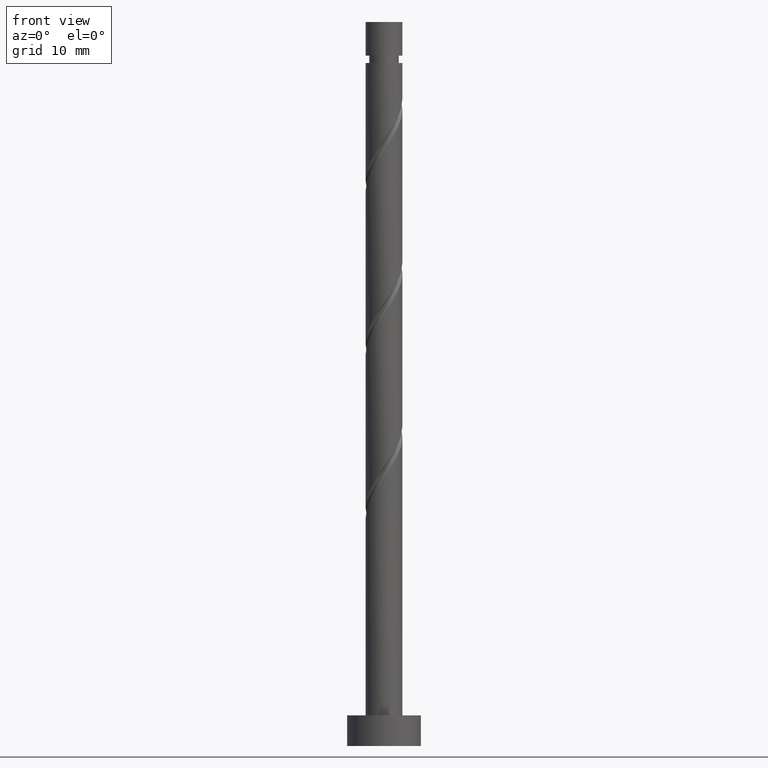
[diagram: clean part render]
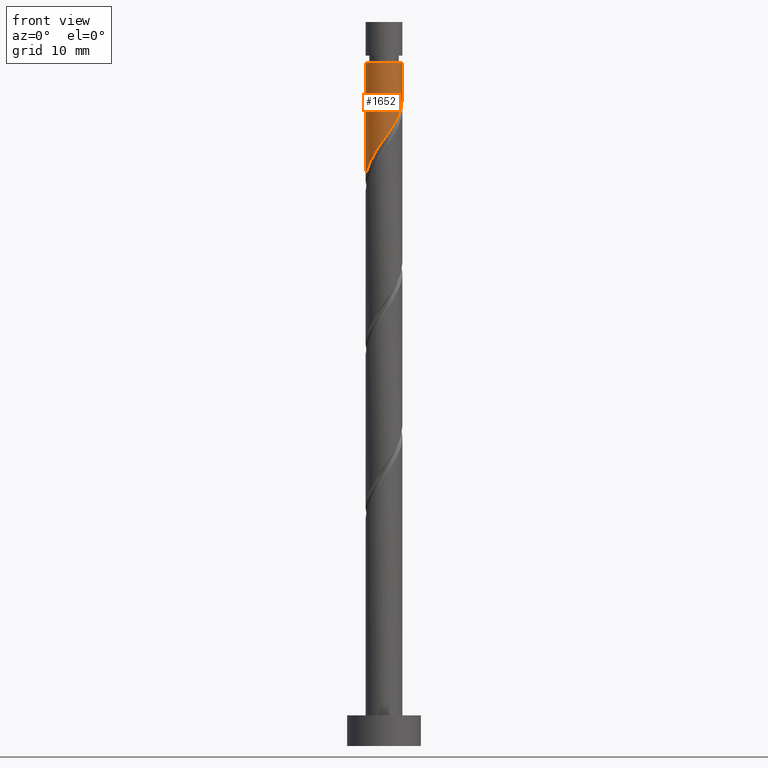
[diagram: same view with one face highlighted and labeled with its STEP entity id]
A machine part, front view. The second image highlights one B-rep face of the part: STEP entity #1652.
In plain terms, the highlighted cylindrical surface (edge-blend (fillet) strip) has radius 3 mm, axis along (-0, -0, -1).
Its self-contained STEP definition (entity closure, byte-faithful):
#42 = DIRECTION ( 'NONE',  ( -1.000000000000000000, 0.000000000000000000, 0.000000000000000000 ) ) ;
#61 = ORIENTED_EDGE ( 'NONE', *, *, #893, .F. ) ;
#63 = CARTESIAN_POINT ( 'NONE',  ( 2.172641248934613412, -2.113215508140329657, 102.2304748742559894 ) ) ;
#149 = CARTESIAN_POINT ( 'NONE',  ( -2.999999999999999112, 0.000000000000000000, 111.3213839651650687 ) ) ;
#152 = CARTESIAN_POINT ( 'NONE',  ( 0.000000000000000000, 0.000000000000000000, 118.0000000000000142 ) ) ;
#192 = CARTESIAN_POINT ( 'NONE',  ( 1.489272404272451222, -2.639719205955342929, 101.0183536621347713 ) ) ;
#264 = DIRECTION ( 'NONE',  ( -1.000000000000000000, 0.000000000000000000, 0.000000000000000000 ) ) ;
#265 = VERTEX_POINT ( 'NONE', #356 ) ;
#285 = CARTESIAN_POINT ( 'NONE',  ( -3.000000000000000444, -1.944386691454553636E-15, 92.17083844446597141 ) ) ;
#300 = LINE ( 'NONE', #570, #1013 ) ;
#356 = CARTESIAN_POINT ( 'NONE',  ( 3.000000000000000444, 1.301243401204201298E-15, 105.5041717777993142 ) ) ;
#357 = CARTESIAN_POINT ( 'NONE',  ( 0.6852515664601597223, -2.952368552718452221, 99.80623245001355315 ) ) ;
#359 = CARTESIAN_POINT ( 'NONE',  ( -3.000000000000000000, -0.3435867821553718615, 92.65679839743729929 ) ) ;
#375 = CARTESIAN_POINT ( 'NONE',  ( -1.782506933304611962, -2.451268816988039223, 96.16986881364995554 ) ) ;
#381 = CARTESIAN_POINT ( 'NONE',  ( 2.825114153412475737, -1.009321564313631292, 104.0486566924377598 ) ) ;
#382 = CYLINDRICAL_SURFACE ( 'NONE', #1640, 3.000000000000000444 ) ;
#464 = CARTESIAN_POINT ( 'NONE',  ( 1.087261985366304584, -2.796043879336897575, 100.4122930560741480 ) ) ;
#484 = CARTESIAN_POINT ( 'NONE',  ( -2.091706021272610183, -2.150526893710449361, 95.56380820758928962 ) ) ;
#504 = CARTESIAN_POINT ( 'NONE',  ( 3.000000000000000888, -0.08632657957146269712, 105.3820737730810748 ) ) ;
#532 = DIRECTION ( 'NONE',  ( -0.000000000000000000, -0.000000000000000000, -1.000000000000000000 ) ) ;
#537 =( BOUNDED_CURVE ( )  B_SPLINE_CURVE ( 2, ( #1551, #504, #1058, #1026, #381, #920, #1449, #63, #976, #192, #464, #357, #854, #1499, #1655, #1543, #1423, #375, #484, #1646, #768, #1528, #633, #359, #285 ),
 .UNSPECIFIED., .F., .T. ) 
 B_SPLINE_CURVE_WITH_KNOTS ( ( 3, 2, 2, 2, 2, 2, 2, 2, 2, 2, 2, 2, 3 ),
 ( 0.3045252162417512176, 0.3068181818181818232, 0.3181818181818181768, 0.3295454545454545303, 0.3409090909090908839, 0.3522727272727272929, 0.3636363636363636465, 0.3750000000000000000, 0.3863636363636363535, 0.3977272727272727071, 0.4090909090909091161, 0.4204545454545454697, 0.4295252162417512731 ),
 .UNSPECIFIED. ) 
 CURVE ( )  GEOMETRIC_REPRESENTATION_ITEM ( )  RATIONAL_B_SPLINE_CURVE ( ( 0.9061101570135510208, 0.9072237824201332401, 0.9090909090909108370, 0.8998376744372130753, 0.9090909090909108370, 0.8998376744372130753, 0.9090909090909108370, 0.8998376744372130753, 0.9090909090909108370, 0.8998376744372130753, 0.9090909090909108370, 0.8998376744372130753, 0.9090909090909108370, 0.8998376744372130753, 0.9090909090909108370, 0.8998376744372130753, 0.9090909090909108370, 0.8998376744372130753, 0.9090909090909108370, 0.8998376744372130753, 0.9090909090909108370, 0.8998376744372130753, 0.9090909090909108370, 0.9017048011079906722, 0.9061101570135511318 ) ) 
 REPRESENTATION_ITEM ( '' )  );
#570 = CARTESIAN_POINT ( 'NONE',  ( 3.000000000000000444, 3.673940397442060361E-16, 118.0000000000000142 ) ) ;
#586 = DIRECTION ( 'NONE',  ( -0.000000000000000000, -0.000000000000000000, -1.000000000000000000 ) ) ;
#633 = CARTESIAN_POINT ( 'NONE',  ( -2.922317697815699944, -0.6782766935647622786, 93.13956578334688174 ) ) ;
#650 = EDGE_CURVE ( 'NONE', #1329, #1216, #658, .T. ) ;
#658 = CIRCLE ( 'NONE', #1620, 2.999999999999999112 ) ;
#676 = CARTESIAN_POINT ( 'NONE',  ( 2.999999999999999112, 3.673940397442058882E-16, 111.3213839651650687 ) ) ;
#741 = VECTOR ( 'NONE', #903, 1000.000000000000000 ) ;
#768 = CARTESIAN_POINT ( 'NONE',  ( -2.612850670599507374, -1.474113758550440689, 94.35168699546811411 ) ) ;
#777 = EDGE_CURVE ( 'NONE', #1216, #1631, #1153, .T. ) ;
#798 = ORIENTED_EDGE ( 'NONE', *, *, #650, .T. ) ;
#854 = CARTESIAN_POINT ( 'NONE',  ( 0.2554836442707034139, -2.989101555235311292, 99.20017184395295828 ) ) ;
#893 = EDGE_CURVE ( 'NONE', #1329, #265, #300, .T. ) ;
#894 = ORIENTED_EDGE ( 'NONE', *, *, #1363, .F. ) ;
#903 = DIRECTION ( 'NONE',  ( -0.000000000000000000, -0.000000000000000000, -1.000000000000000000 ) ) ;
#920 = CARTESIAN_POINT ( 'NONE',  ( 2.679995620803124368, -1.415511657632331222, 103.4425960863771934 ) ) ;
#921 = DIRECTION ( 'NONE',  ( -0.000000000000000000, -0.000000000000000000, -1.000000000000000000 ) ) ;
#976 = CARTESIAN_POINT ( 'NONE',  ( 1.830956826603531873, -2.376467357047836071, 101.6244142681953946 ) ) ;
#1013 = VECTOR ( 'NONE', #586, 1000.000000000000000 ) ;
#1026 = CARTESIAN_POINT ( 'NONE',  ( 2.970232686021826218, -0.6031314709949331387, 104.6547172984984257 ) ) ;
#1058 = CARTESIAN_POINT ( 'NONE',  ( 2.995035924847409881, -0.1725103152667154527, 105.2607779045589922 ) ) ;
#1068 = FACE_OUTER_BOUND ( 'NONE', #1101, .T. ) ;
#1101 = EDGE_LOOP ( 'NONE', ( #61, #798, #1516, #894 ) ) ;
#1153 = LINE ( 'NONE', #1537, #741 ) ;
#1216 = VERTEX_POINT ( 'NONE', #149 ) ;
#1329 = VERTEX_POINT ( 'NONE', #676 ) ;
#1363 = EDGE_CURVE ( 'NONE', #265, #1631, #537, .T. ) ;
#1423 = CARTESIAN_POINT ( 'NONE',  ( -1.401103789956902768, -2.652717129617932823, 96.77592941971052198 ) ) ;
#1449 = CARTESIAN_POINT ( 'NONE',  ( 2.426318434868868668, -1.764363582886330217, 102.8365354803165985 ) ) ;
#1499 = CARTESIAN_POINT ( 'NONE',  ( -0.1742842779187510904, -3.025834557752173470, 98.59411123789237763 ) ) ;
#1516 = ORIENTED_EDGE ( 'NONE', *, *, #777, .T. ) ;
#1528 = CARTESIAN_POINT ( 'NONE',  ( -2.824796231958407677, -1.098442546668021880, 93.74562638940750503 ) ) ;
#1537 = CARTESIAN_POINT ( 'NONE',  ( -3.000000000000000444, 0.000000000000000000, 118.0000000000000142 ) ) ;
#1543 = CARTESIAN_POINT ( 'NONE',  ( -1.019700646609193795, -2.854165442247829532, 97.38199002577114527 ) ) ;
#1546 = CARTESIAN_POINT ( 'NONE',  ( 0.000000000000000000, 0.000000000000000000, 111.3213839651650687 ) ) ;
#1551 = CARTESIAN_POINT ( 'NONE',  ( 3.000000000000000444, 1.301243401204201298E-15, 105.5041717777993142 ) ) ;
#1560 = CARTESIAN_POINT ( 'NONE',  ( -3.000000000000000444, -1.944386691454553636E-15, 92.17083844446597141 ) ) ;
#1620 = AXIS2_PLACEMENT_3D ( 'NONE', #1546, #532, #264 ) ;
#1631 = VERTEX_POINT ( 'NONE', #1560 ) ;
#1640 = AXIS2_PLACEMENT_3D ( 'NONE', #152, #921, #42 ) ;
#1646 = CARTESIAN_POINT ( 'NONE',  ( -2.400905109240607516, -1.849784970432859721, 94.95774760152869476 ) ) ;
#1652 = ADVANCED_FACE ( 'NONE', ( #1068 ), #382, .T. ) ;
#1655 = CARTESIAN_POINT ( 'NONE',  ( -0.5969924622639721790, -2.939999999999999503, 97.98805063183172592 ) ) ;